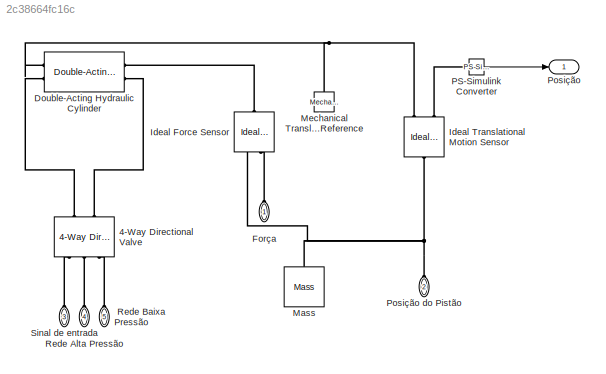
MODEL slx_2c38664fc16c
KIND model
CONFIG AbsTol = auto
CONFIG EnableMultiTasking = off
CONFIG FixedStep = auto
CONFIG MaxStep = auto
CONFIG MinStep = auto
CONFIG RelTol = 1e-3
CONFIG SampleTimeConstraint = Unconstrained
CONFIG Solver = VariableStepAuto
CONFIG SolverName = VariableStepAuto
CONFIG StartTime = 0.0
CONFIG StopTime = 10.0
BLOCK [PMIOPort]  Posição do Pistão
  NameLocation = right
  Port = 2
  Side = Left
BLOCK [PMIOPort]  Rede Baixa Pressão
  NameLocation = right
  Port = 5
  Side = Left
BLOCK [Reference] 4-Way Directional Valve  REF=sh_lib/Valves/Directional Valves/4-Way Directional
Valve
  NameLocation = right
  Ports = [0, 0, 0, 0, 0, 2, 3]
  SourceBlock = sh_lib/Valves/Directional Valves/4-Way Directional\nValve
  SourceType = 4-Way Directional\nValve
BLOCK [Reference] Double-Acting Hydraulic Cylinder  REF=sh_lib/Hydraulic Cylinders/Double-Acting
Hydraulic Cylinder
  Ports = [0, 0, 0, 0, 0, 2, 2]
  SourceBlock = sh_lib/Hydraulic Cylinders/Double-Acting\nHydraulic Cylinder
  SourceType = Double-Acting\nHydraulic Cylinder
BLOCK [PMIOPort] Força
  NameLocation = right
  Side = Left
BLOCK [Reference] Ideal Force Sensor  REF=fl_lib/Mechanical/Mechanical Sensors/Ideal Force Sensor
  NameLocation = left
  Ports = [0, 0, 0, 0, 0, 1, 2]
  SourceBlock = fl_lib/Mechanical/Mechanical Sensors/Ideal Force Sensor
  SourceType = Ideal Force Sensor
BLOCK [Reference] Ideal Translational Motion Sensor  REF=fl_lib/Mechanical/Mechanical Sensors/Ideal Translational
Motion Sensor
  NameLocation = right
  Ports = [0, 0, 0, 0, 0, 1, 3]
  SourceBlock = fl_lib/Mechanical/Mechanical Sensors/Ideal Translational\nMotion Sensor
  SourceType = Ideal Translational\nMotion Sensor
BLOCK [Reference] Mass  REF=fl_lib/Mechanical/Translational
Elements/Mass
  NameLocation = right
  Ports = [0, 0, 0, 0, 0, 1]
  SourceBlock = fl_lib/Mechanical/Translational\nElements/Mass
  SourceType = Mass
BLOCK [Reference] Mechanical Translational Reference  REF=fl_lib/Mechanical/Translational
Elements/Mechanical
Translational
Reference
  NameLocation = right
  Ports = [0, 0, 0, 0, 0, 1]
  SourceBlock = fl_lib/Mechanical/Translational\nElements/Mechanical\nTranslational\nReference
  SourceType = Mechanical\nTranslational\nReference
BLOCK [Reference] PS-Simulink Converter  REF=nesl_utility/PS-Simulink
Converter
  Ports = [0, 1, 0, 0, 0, 1]
  SourceBlock = nesl_utility/PS-Simulink\nConverter
  SourceType = PS-Simulink\nConverter
BLOCK [Outport] Posição
BLOCK [PMIOPort] Rede Alta Pressão
  Port = 4
  Side = Left
BLOCK [PMIOPort] Sinal de entrada 
  NameLocation = left
  Port = 3
  Side = Left
LINE PS-Simulink Converter:1 -> Posição:1
PNET net1:  Posição do Pistão:RConn1 -- Ideal Force Sensor:RConn1 -- Ideal Translational Motion Sensor:LConn1 -- Mass:LConn1
PLINE  Rede Baixa Pressão:RConn1 -- 4-Way Directional Valve:RConn3
PLINE 4-Way Directional Valve:LConn1 -- Double-Acting Hydraulic Cylinder:LConn2
PLINE 4-Way Directional Valve:LConn2 -- Double-Acting Hydraulic Cylinder:RConn2
PLINE 4-Way Directional Valve:RConn1 -- Sinal de entrada :RConn1
PLINE 4-Way Directional Valve:RConn2 -- Rede Alta Pressão:RConn1
PNET net2: Double-Acting Hydraulic Cylinder:LConn1 -- Ideal Translational Motion Sensor:RConn1 -- Mechanical Translational Reference:LConn1
PLINE Double-Acting Hydraulic Cylinder:RConn1 -- Ideal Force Sensor:LConn1
PLINE Força:RConn1 -- Ideal Force Sensor:RConn2
PLINE Ideal Translational Motion Sensor:RConn3 -- PS-Simulink Converter:LConn1
note: PNET lines group multi-terminal physical nets as a canonical sorted terminal list (undirected conserving connections); 2-terminal nets keep the pairwise PLINE form
